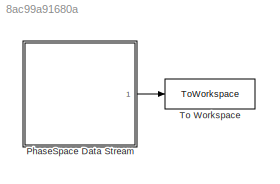
MODEL slx_8ac99a91680a
KIND model
CONFIG AbsTol = auto
CONFIG EnableMultiTasking = off
CONFIG FixedStep = 0.01
CONFIG MaxStep = auto
CONFIG MinStep = auto
CONFIG RelTol = 1e-3
CONFIG SampleTimeConstraint = Unconstrained
CONFIG Solver = FixedStepAuto
CONFIG SolverName = FixedStepAuto
CONFIG StartTime = 0.0
CONFIG StopTime = inf
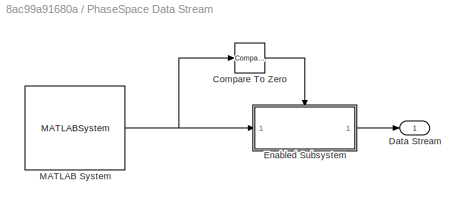
BLOCK [SubSystem] PhaseSpace Data Stream
  Ports = [0, 1]
  RequestExecContextInheritance = off
BLOCK [Reference] PhaseSpace Data Stream/Compare To Zero  REF=simulink/Logic and Bit
Operations/Compare
To Zero
  Ports = [1, 1]
  SourceBlock = simulink/Logic and Bit\nOperations/Compare\nTo Zero
  SourceProductBaseCode = SL
  SourceType = Compare To Zero
BLOCK [Outport] PhaseSpace Data Stream/Data Stream
  VectorParamsAs1DForOutWhenUnconnected = off
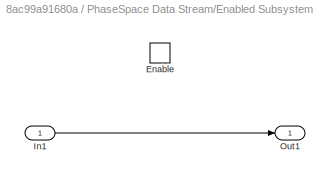
BLOCK [SubSystem] PhaseSpace Data Stream/Enabled Subsystem
  Ports = [1, 1, 1]
  RequestExecContextInheritance = off
  TreatAsAtomicUnit = on
BLOCK [EnablePort] PhaseSpace Data Stream/Enabled Subsystem/Enable
  Ports = []
BLOCK [Inport] PhaseSpace Data Stream/Enabled Subsystem/In1
BLOCK [Outport] PhaseSpace Data Stream/Enabled Subsystem/Out1
  VectorParamsAs1DForOutWhenUnconnected = off
BLOCK [MATLABSystem] PhaseSpace Data Stream/MATLAB System
  MaskDisplay = disp('Stream_PS_ALL');\nport_label('output',1,'y');
  MaskType = PhaseSpace_ALL
  Ports = [0, 1]
  System = PhaseSpace_ALL
  platformSelection = platformSelection
BLOCK [ToWorkspace] To Workspace
  FixptAsFi = on
  MaxDataPoints = inf
  Ports = [1]
  SampleTime = -1
  Save2DSignal = 2-D array (concatenate along first dimension)
  VariableName = simout
LINE PhaseSpace Data Stream/Compare To Zero:1 -> PhaseSpace Data Stream/Enabled Subsystem:enable
LINE PhaseSpace Data Stream/Enabled Subsystem/In1:1 -> PhaseSpace Data Stream/Enabled Subsystem/Out1:1
LINE PhaseSpace Data Stream/Enabled Subsystem:1 -> PhaseSpace Data Stream/Data Stream:1
NET PhaseSpace Data Stream/MATLAB System:1 -> PhaseSpace Data Stream/Compare To Zero:1, PhaseSpace Data Stream/Enabled Subsystem:1
LINE PhaseSpace Data Stream:1 -> To Workspace:1
note: NET lines group one-source signal fan-out (src -> all destinations, sorted); 1:1 wires keep LINE
